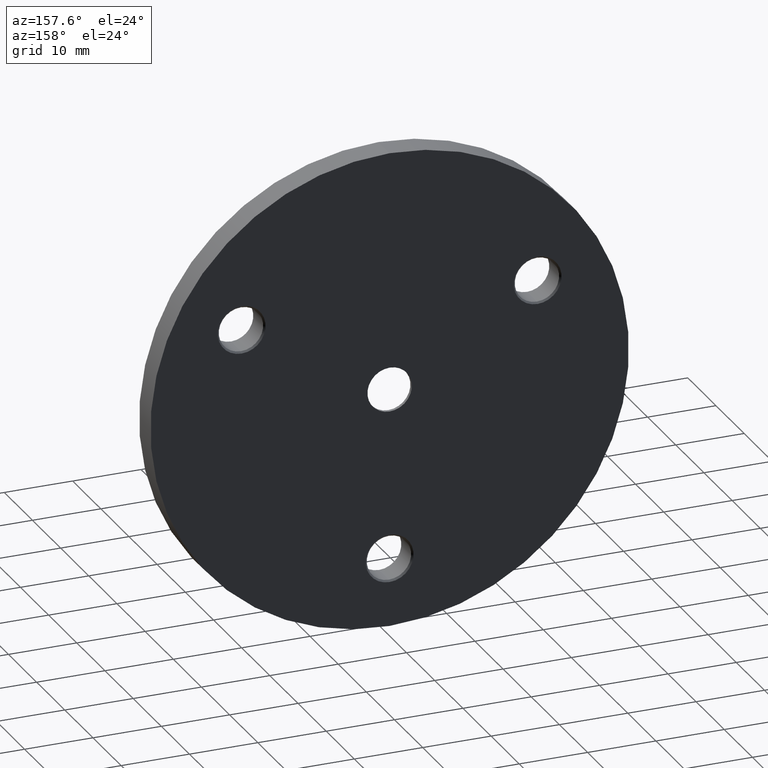
[diagram: clean part render]
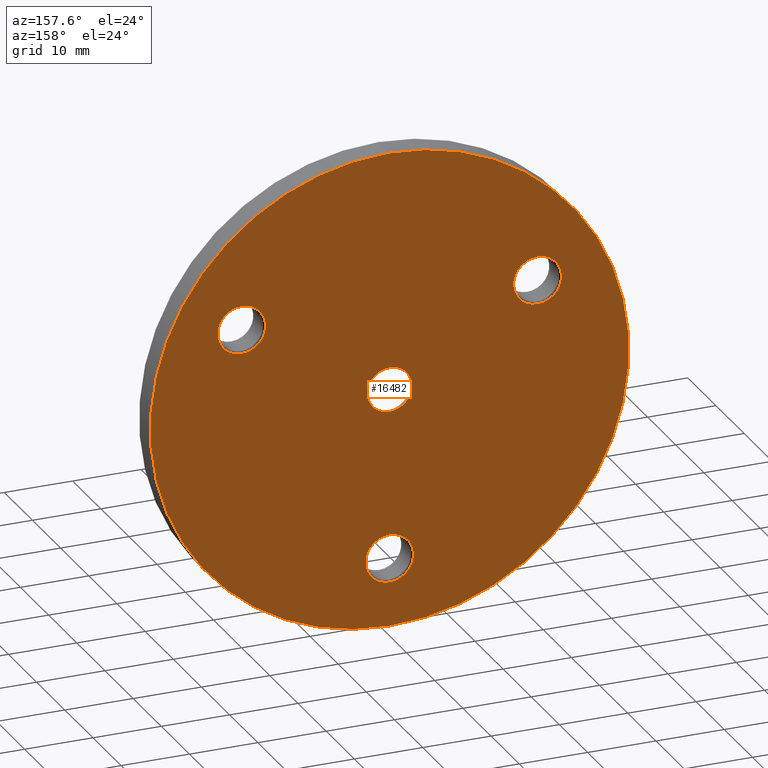
[diagram: same view with one face highlighted and labeled with its STEP entity id]
A machine part, auxiliary view. The second image highlights one B-rep face of the part: STEP entity #16482.
In plain terms, the highlighted planar face has unit normal (0, 1, 0).
Its self-contained STEP definition (entity closure, byte-faithful):
#90 = CARTESIAN_POINT ( 'NONE',  ( 4.286263797015737285E-15, 4.000000000000000000, 35.00000000000000711 ) ) ;
#219 = VERTEX_POINT ( 'NONE', #776 ) ;
#430 = CIRCLE ( 'NONE', #15856, 3.250000000000000000 ) ;
#593 = ORIENTED_EDGE ( 'NONE', *, *, #4851, .T. ) ;
#756 = CARTESIAN_POINT ( 'NONE',  ( 21.65063509461097269, 4.000000000000000000, 15.99999999999998934 ) ) ;
#776 = CARTESIAN_POINT ( 'NONE',  ( 0.000000000000000000, 4.000000000000000000, -3.250000000000000000 ) ) ;
#875 = DIRECTION ( 'NONE',  ( 0.000000000000000000, -0.000000000000000000, 1.000000000000000000 ) ) ;
#903 = AXIS2_PLACEMENT_3D ( 'NONE', #12916, #10465, #5212 ) ;
#997 = DIRECTION ( 'NONE',  ( 0.000000000000000000, 0.000000000000000000, 1.000000000000000000 ) ) ;
#1091 = DIRECTION ( 'NONE',  ( 0.000000000000000000, 0.000000000000000000, 1.000000000000000000 ) ) ;
#1700 = EDGE_CURVE ( 'NONE', #15312, #13547, #9731, .T. ) ;
#1751 = AXIS2_PLACEMENT_3D ( 'NONE', #16099, #5650, #4516 ) ;
#2277 = CARTESIAN_POINT ( 'NONE',  ( 21.65063509461097269, 4.000000000000000000, 9.000000000000010658 ) ) ;
#2362 = CARTESIAN_POINT ( 'NONE',  ( -21.65063509461096203, 4.000000000000000000, 16.00000000000000000 ) ) ;
#2363 = EDGE_CURVE ( 'NONE', #15885, #9357, #10674, .T. ) ;
#2575 = DIRECTION ( 'NONE',  ( 0.000000000000000000, 0.000000000000000000, 1.000000000000000000 ) ) ;
#2638 = ORIENTED_EDGE ( 'NONE', *, *, #2363, .T. ) ;
#2778 = ORIENTED_EDGE ( 'NONE', *, *, #5439, .F. ) ;
#3172 = VERTEX_POINT ( 'NONE', #12434 ) ;
#3516 = EDGE_LOOP ( 'NONE', ( #11042, #6093 ) ) ;
#3583 = CARTESIAN_POINT ( 'NONE',  ( 0.000000000000000000, 4.000000000000000000, 0.000000000000000000 ) ) ;
#3603 = ORIENTED_EDGE ( 'NONE', *, *, #12297, .T. ) ;
#3726 = VERTEX_POINT ( 'NONE', #756 ) ;
#3950 = EDGE_LOOP ( 'NONE', ( #5508, #593 ) ) ;
#4094 = AXIS2_PLACEMENT_3D ( 'NONE', #15421, #11511, #15249 ) ;
#4316 = DIRECTION ( 'NONE',  ( -0.000000000000000000, -1.000000000000000000, -0.000000000000000000 ) ) ;
#4516 = DIRECTION ( 'NONE',  ( 0.000000000000000000, 0.000000000000000000, 1.000000000000000000 ) ) ;
#4796 = EDGE_LOOP ( 'NONE', ( #7672, #12409 ) ) ;
#4851 = EDGE_CURVE ( 'NONE', #6057, #3726, #14405, .T. ) ;
#4891 = DIRECTION ( 'NONE',  ( 0.000000000000000000, 0.000000000000000000, 1.000000000000000000 ) ) ;
#4897 = DIRECTION ( 'NONE',  ( 0.000000000000000000, 1.000000000000000000, 0.000000000000000000 ) ) ;
#5114 = EDGE_LOOP ( 'NONE', ( #2638, #3603 ) ) ;
#5212 = DIRECTION ( 'NONE',  ( 0.000000000000000000, 0.000000000000000000, 1.000000000000000000 ) ) ;
#5344 = VERTEX_POINT ( 'NONE', #13630 ) ;
#5439 = EDGE_CURVE ( 'NONE', #219, #5344, #430, .T. ) ;
#5508 = ORIENTED_EDGE ( 'NONE', *, *, #7263, .T. ) ;
#5650 = DIRECTION ( 'NONE',  ( -0.000000000000000000, -1.000000000000000000, -0.000000000000000000 ) ) ;
#6057 = VERTEX_POINT ( 'NONE', #2277 ) ;
#6093 = ORIENTED_EDGE ( 'NONE', *, *, #15261, .T. ) ;
#6115 = CARTESIAN_POINT ( 'NONE',  ( -21.65063509461096203, 4.000000000000000000, 12.50000000000001066 ) ) ;
#6194 = CARTESIAN_POINT ( 'NONE',  ( 0.000000000000000000, 4.000000000000000000, -21.50000000000000000 ) ) ;
#6414 = FACE_BOUND ( 'NONE', #15612, .T. ) ;
#7263 = EDGE_CURVE ( 'NONE', #3726, #6057, #8721, .T. ) ;
#7360 = AXIS2_PLACEMENT_3D ( 'NONE', #15250, #12747, #875 ) ;
#7449 = DIRECTION ( 'NONE',  ( 0.000000000000000000, 0.000000000000000000, 1.000000000000000000 ) ) ;
#7524 = DIRECTION ( 'NONE',  ( 0.000000000000000000, 1.000000000000000000, 0.000000000000000000 ) ) ;
#7563 = DIRECTION ( 'NONE',  ( -0.000000000000000000, -1.000000000000000000, -0.000000000000000000 ) ) ;
#7672 = ORIENTED_EDGE ( 'NONE', *, *, #8242, .T. ) ;
#7832 = DIRECTION ( 'NONE',  ( -0.000000000000000000, -1.000000000000000000, -0.000000000000000000 ) ) ;
#8236 = FACE_BOUND ( 'NONE', #3950, .T. ) ;
#8242 = EDGE_CURVE ( 'NONE', #3172, #14961, #12509, .T. ) ;
#8666 = PLANE ( 'NONE',  #7360 ) ;
#8721 = CIRCLE ( 'NONE', #10097, 3.499999999999989342 ) ;
#8724 = CARTESIAN_POINT ( 'NONE',  ( 0.000000000000000000, 4.000000000000000000, 0.000000000000000000 ) ) ;
#8732 = CARTESIAN_POINT ( 'NONE',  ( 0.000000000000000000, 4.000000000000000000, -25.00000000000000000 ) ) ;
#9187 = EDGE_CURVE ( 'NONE', #5344, #219, #12280, .T. ) ;
#9357 = VERTEX_POINT ( 'NONE', #10864 ) ;
#9585 = AXIS2_PLACEMENT_3D ( 'NONE', #16768, #7832, #2575 ) ;
#9731 = CIRCLE ( 'NONE', #14979, 3.499999999999989342 ) ;
#9853 = FACE_BOUND ( 'NONE', #5114, .T. ) ;
#9856 = CIRCLE ( 'NONE', #16218, 35.00000000000000711 ) ;
#10097 = AXIS2_PLACEMENT_3D ( 'NONE', #14648, #4316, #11980 ) ;
#10465 = DIRECTION ( 'NONE',  ( 0.000000000000000000, 1.000000000000000000, 0.000000000000000000 ) ) ;
#10674 = CIRCLE ( 'NONE', #15187, 3.500000000000003109 ) ;
#10754 = AXIS2_PLACEMENT_3D ( 'NONE', #8724, #7524, #1091 ) ;
#10785 = CARTESIAN_POINT ( 'NONE',  ( 0.000000000000000000, 4.000000000000000000, 0.000000000000000000 ) ) ;
#10864 = CARTESIAN_POINT ( 'NONE',  ( 4.286263797015740046E-16, 4.000000000000000000, -28.50000000000000355 ) ) ;
#11042 = ORIENTED_EDGE ( 'NONE', *, *, #1700, .T. ) ;
#11044 = EDGE_CURVE ( 'NONE', #14961, #3172, #9856, .T. ) ;
#11489 = CIRCLE ( 'NONE', #4094, 3.499999999999989342 ) ;
#11511 = DIRECTION ( 'NONE',  ( -0.000000000000000000, -1.000000000000000000, -0.000000000000000000 ) ) ;
#11980 = DIRECTION ( 'NONE',  ( 0.000000000000000000, 0.000000000000000000, 1.000000000000000000 ) ) ;
#12229 = CIRCLE ( 'NONE', #9585, 3.500000000000003109 ) ;
#12280 = CIRCLE ( 'NONE', #903, 3.250000000000000000 ) ;
#12297 = EDGE_CURVE ( 'NONE', #9357, #15885, #12229, .T. ) ;
#12409 = ORIENTED_EDGE ( 'NONE', *, *, #11044, .T. ) ;
#12434 = CARTESIAN_POINT ( 'NONE',  ( 0.000000000000000000, 4.000000000000000000, -35.00000000000000711 ) ) ;
#12509 = CIRCLE ( 'NONE', #10754, 35.00000000000000711 ) ;
#12597 = DIRECTION ( 'NONE',  ( -0.000000000000000000, -1.000000000000000000, -0.000000000000000000 ) ) ;
#12747 = DIRECTION ( 'NONE',  ( 0.000000000000000000, 1.000000000000000000, 0.000000000000000000 ) ) ;
#12916 = CARTESIAN_POINT ( 'NONE',  ( 0.000000000000000000, 4.000000000000000000, 0.000000000000000000 ) ) ;
#13146 = CARTESIAN_POINT ( 'NONE',  ( -21.65063509461096203, 4.000000000000000000, 9.000000000000021316 ) ) ;
#13457 = ORIENTED_EDGE ( 'NONE', *, *, #9187, .F. ) ;
#13547 = VERTEX_POINT ( 'NONE', #13146 ) ;
#13630 = CARTESIAN_POINT ( 'NONE',  ( 3.980102097228897738E-16, 4.000000000000000000, 3.250000000000000000 ) ) ;
#14405 = CIRCLE ( 'NONE', #1751, 3.499999999999989342 ) ;
#14648 = CARTESIAN_POINT ( 'NONE',  ( 21.65063509461097269, 4.000000000000000000, 12.50000000000000000 ) ) ;
#14961 = VERTEX_POINT ( 'NONE', #90 ) ;
#14979 = AXIS2_PLACEMENT_3D ( 'NONE', #6115, #7563, #7449 ) ;
#15187 = AXIS2_PLACEMENT_3D ( 'NONE', #8732, #12597, #4891 ) ;
#15249 = DIRECTION ( 'NONE',  ( 0.000000000000000000, 0.000000000000000000, 1.000000000000000000 ) ) ;
#15250 = CARTESIAN_POINT ( 'NONE',  ( 0.000000000000000000, 4.000000000000000000, 0.000000000000000000 ) ) ;
#15261 = EDGE_CURVE ( 'NONE', #13547, #15312, #11489, .T. ) ;
#15312 = VERTEX_POINT ( 'NONE', #2362 ) ;
#15421 = CARTESIAN_POINT ( 'NONE',  ( -21.65063509461096203, 4.000000000000000000, 12.50000000000001066 ) ) ;
#15612 = EDGE_LOOP ( 'NONE', ( #2778, #13457 ) ) ;
#15856 = AXIS2_PLACEMENT_3D ( 'NONE', #3583, #4897, #997 ) ;
#15885 = VERTEX_POINT ( 'NONE', #6194 ) ;
#16025 = DIRECTION ( 'NONE',  ( 0.000000000000000000, 0.000000000000000000, 1.000000000000000000 ) ) ;
#16079 = DIRECTION ( 'NONE',  ( 0.000000000000000000, 1.000000000000000000, 0.000000000000000000 ) ) ;
#16099 = CARTESIAN_POINT ( 'NONE',  ( 21.65063509461097269, 4.000000000000000000, 12.50000000000000000 ) ) ;
#16218 = AXIS2_PLACEMENT_3D ( 'NONE', #10785, #16079, #16025 ) ;
#16331 = FACE_OUTER_BOUND ( 'NONE', #4796, .T. ) ;
#16482 = ADVANCED_FACE ( 'NONE', ( #6414, #8236, #16723, #9853, #16331 ), #8666, .T. ) ;
#16723 = FACE_BOUND ( 'NONE', #3516, .T. ) ;
#16768 = CARTESIAN_POINT ( 'NONE',  ( 0.000000000000000000, 4.000000000000000000, -25.00000000000000000 ) ) ;